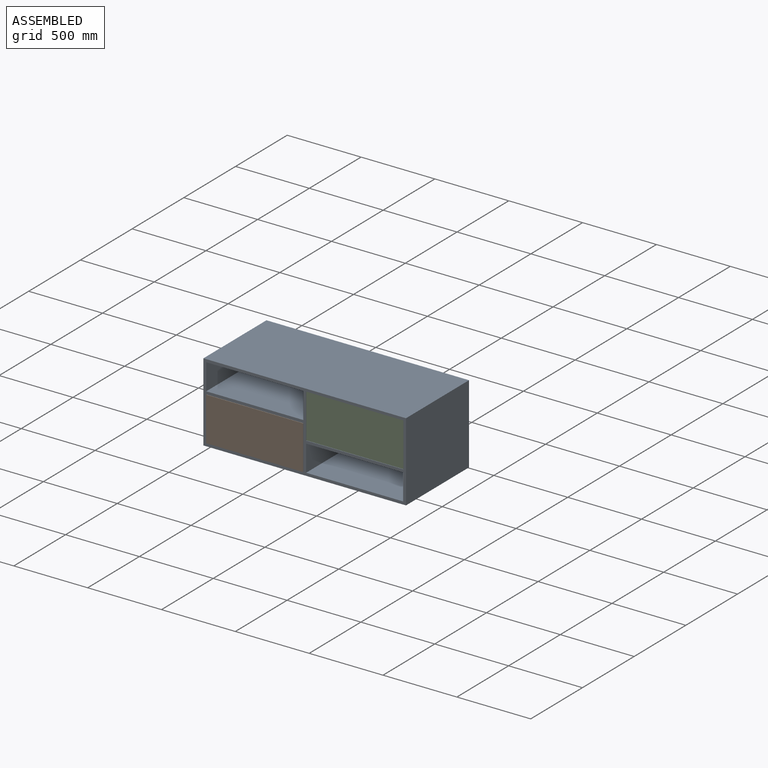
[diagram: assembled view]
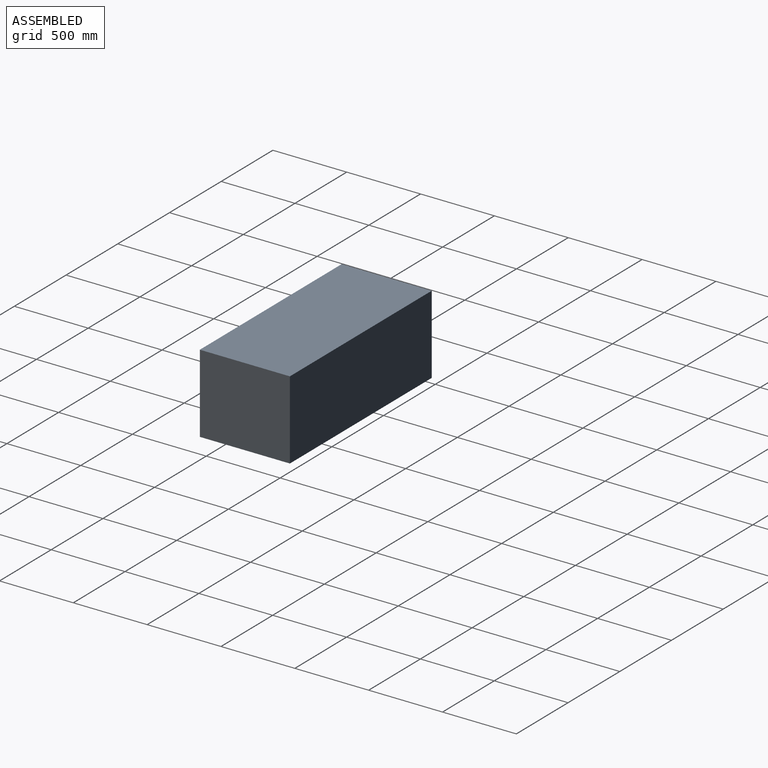
[diagram: assembled view, second angle]
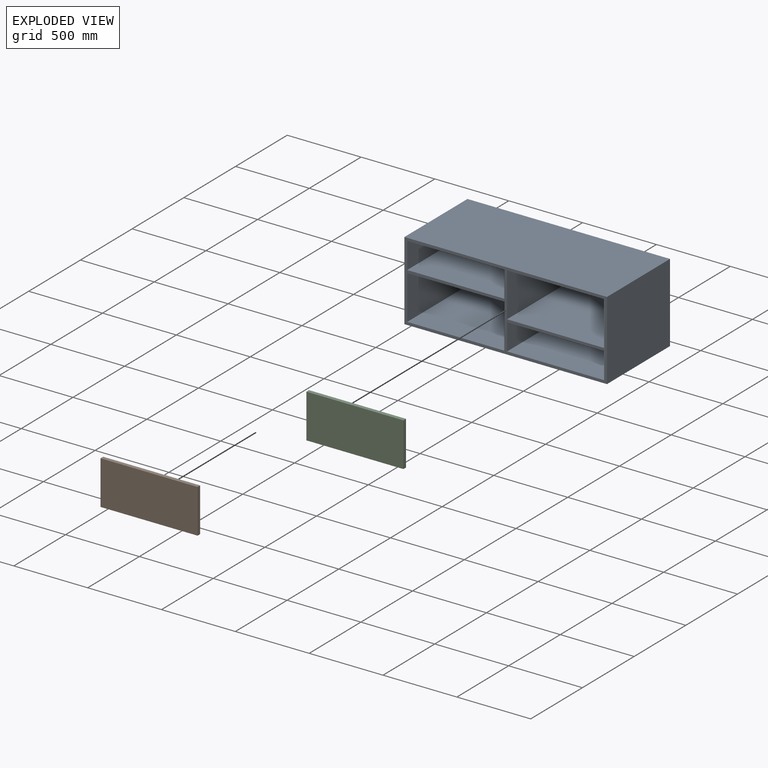
[diagram: exploded view]
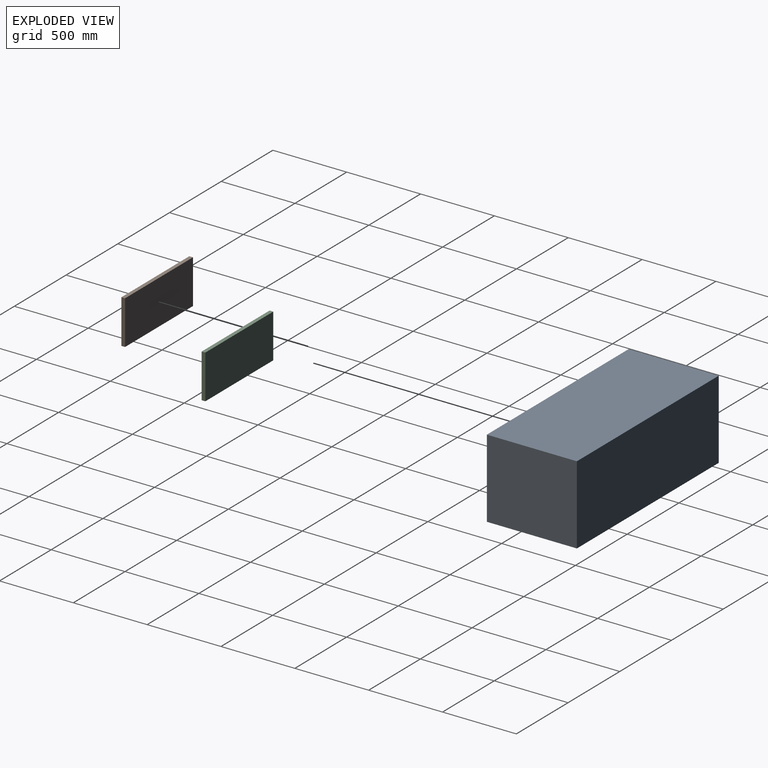
[diagram: exploded view, second angle]
ASSEMBLY  parts=3 mates=2
PART A: 26 faces, bbox 1371.6x609.6x533.4 mm
  f0: plane 1371.6x533.4mm, normal (0,-1,0), area 105604.6mm2, adj f1,f2,f3,f4,f6,f7,f8,f9
  f1: plane 609.6x533.4mm, normal (-1,0,0), area 325160.6mm2, adj f0,f2,f4,f5
  f2: plane 1371.6x609.6mm, normal (0,0,-1), area 836127.4mm2, adj f0,f1,f3,f5
  f3: plane 609.6x533.4mm, normal (1,0,0), area 325160.6mm2, adj f0,f2,f4,f5
  f4: plane 1371.6x609.6mm, normal (0,0,1), area 836127.4mm2, adj f0,f1,f3,f5
  f5: plane 1371.6x533.4mm, normal (0,1,0), area 731611.4mm2, adj f1,f2,f3,f4
  f6: plane 657.23x573mm, normal (0,0,-1), area 376589.9mm2, adj f0,f7,f9,f10
  f7: plane 573x177.8mm, normal (1,0,0), area 101879.4mm2, adj f0,f6,f8,f10
  f8: plane 657.23x573mm, normal (0,0,1), area 376589.9mm2, adj f0,f7,f9,f10
  f9: plane 573x177.8mm, normal (-1,0,0), area 101879.4mm2, adj f0,f6,f8,f10
  f10: plane 657.23x177.8mm, normal (0,-1,0), area 116854.6mm2, adj f6,f7,f8,f9
  f11: plane 573x298.45mm, normal (-1,0,0), area 171011.9mm2, adj f0,f12,f14,f15
  f12: plane 657.23x573mm, normal (0,0,-1), area 376589.9mm2, adj f0,f11,f13,f15
  f13: plane 573x298.45mm, normal (1,0,0), area 171011.9mm2, adj f0,f12,f14,f15
  f14: plane 657.23x573mm, normal (0,0,1), area 376589.9mm2, adj f0,f11,f13,f15
  f15: plane 657.23x298.45mm, normal (0,-1,0), area 196148.8mm2, adj f11,f12,f13,f14
  f16: plane 573x298.45mm, normal (1,0,0), area 171011.9mm2, adj f0,f17,f19,f20
  f17: plane 657.23x573mm, normal (0,0,1), area 376589.9mm2, adj f0,f16,f18,f20
  f18: plane 573x298.45mm, normal (-1,0,0), area 171011.9mm2, adj f0,f17,f19,f20
  f19: plane 657.23x573mm, normal (0,0,-1), area 376589.9mm2, adj f0,f16,f18,f20
  f20: plane 657.23x298.45mm, normal (0,-1,0), area 196148.8mm2, adj f16,f17,f18,f19
  f21: plane 573x177.8mm, normal (1,0,0), area 101879.4mm2, adj f0,f22,f24,f25
  f22: plane 657.23x573mm, normal (0,0,1), area 376589.9mm2, adj f0,f21,f23,f25
  f23: plane 573x177.8mm, normal (-1,0,0), area 101879.4mm2, adj f0,f22,f24,f25
  f24: plane 657.23x573mm, normal (0,0,-1), area 376589.9mm2, adj f0,f21,f23,f25
  f25: plane 657.23x177.8mm, normal (0,-1,0), area 116854.6mm2, adj f21,f22,f23,f24
PART B: 6 faces, bbox 657x25x298 mm
  f0: plane 298x25mm, normal (-1,0,0), area 7450mm2, adj f1,f3,f4,f5
  f1: plane 657x25mm, normal (0,0,-1), area 16425mm2, adj f0,f2,f4,f5
  f2: plane 298x25mm, normal (1,0,0), area 7450mm2, adj f1,f3,f4,f5
  f3: plane 657x25mm, normal (0,0,1), area 16425mm2, adj f0,f2,f4,f5
  f4: plane 657x298mm, normal (0,-1,0), area 195786mm2, adj f0,f1,f2,f3
  f5: plane 657x298mm, normal (0,1,0), area 195786mm2, adj f0,f1,f2,f3
PART C: same geometry as B
PLACE A t=(-515.49,465.47,-173.19)mm fixed
PLACE B t=(-498.19,-119.13,-155.49)mm
PLACE C t=(181.81,-119.13,44.51)mm
MATE fastened B.f4 <-> A.f0  axis (0,-1,0) through (-169.69,-144.13,-6.49)mm
MATE fastened C.f4 <-> A.f0  axis (0,-1,0) through (510.31,-144.13,193.51)mm
